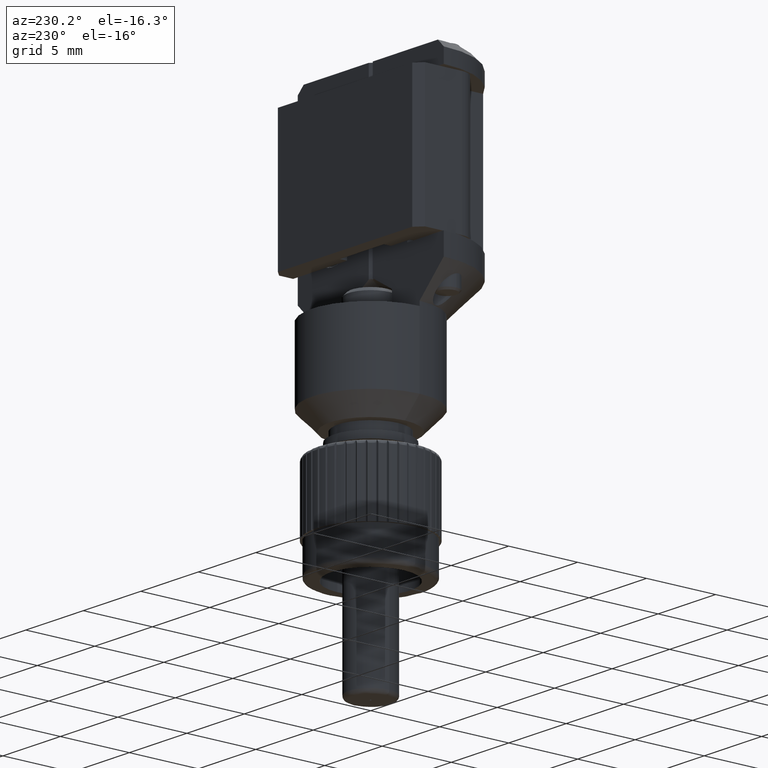
[diagram: clean part render]
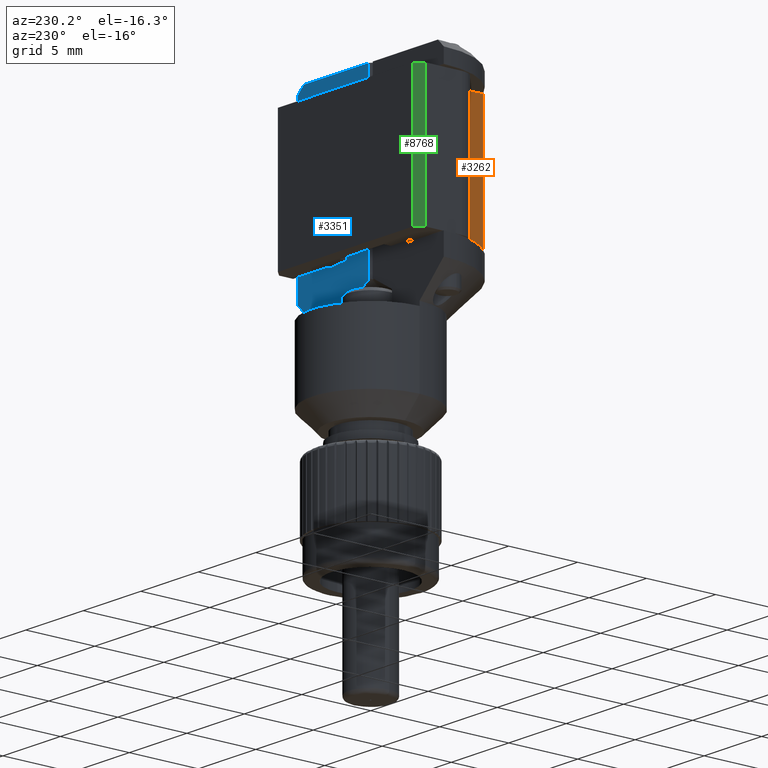
[diagram: same view with three faces highlighted in distinct colors, each labeled with its STEP entity id]
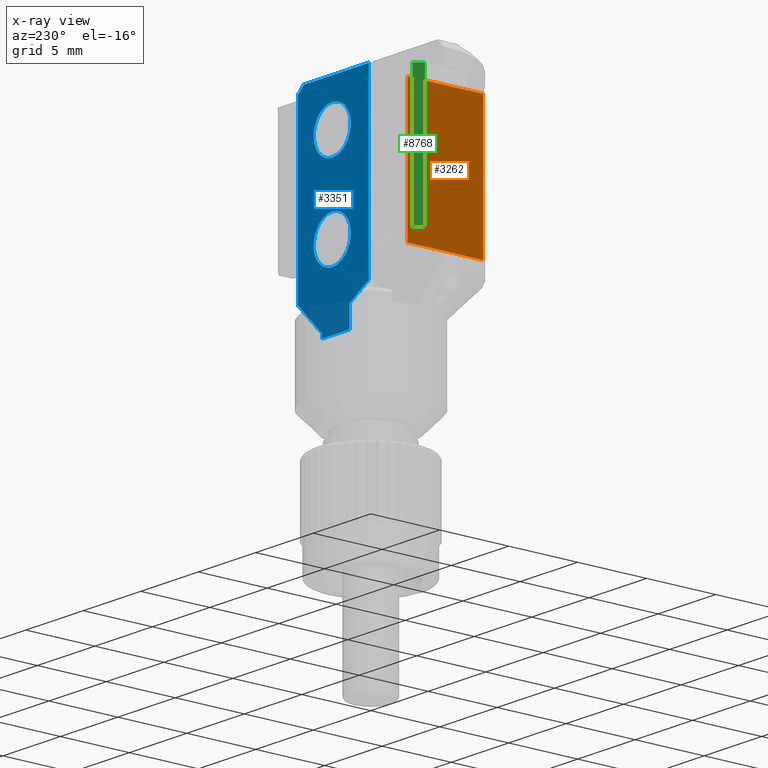
[diagram: x-ray of the same camera — body ghosted, the three highlighted faces saturated]
A machine part, auxiliary view with three faces highlighted in distinct colors.
The next image is the same camera in x-ray (body ghosted, the three faces saturated) — at least one of them is partly hidden behind the body in this view.
Their STEP definitions:

[orange] entity #3262 — the highlighted planar face has unit normal (1, 0, -0).
#190 = EDGE_CURVE ( 'NONE', #6319, #4273, #8465, .T. ) ;
#225 = CARTESIAN_POINT ( 'NONE',  ( -0.1250000000000000000, 0.0000000000000000000, 0.3118110236220471600 ) ) ;
#574 = CARTESIAN_POINT ( 'NONE',  ( -0.1250000000000000000, -0.2500000000000000000, 0.3118110236220471600 ) ) ;
#916 = CARTESIAN_POINT ( 'NONE',  ( -0.1250000000000000000, -0.2165063509461096200, 0.2518110236220472700 ) ) ;
#1170 = CARTESIAN_POINT ( 'NONE',  ( -0.1250000000000000000, 0.0000000000000000000, 0.3118110236220471600 ) ) ;
#1608 = DIRECTION ( 'NONE',  ( -0.0000000000000000000, 1.000000000000000000, -0.0000000000000000000 ) ) ;
#2085 = VECTOR ( 'NONE', #9358, 39.37007874015748100 ) ;
#2087 = DIRECTION ( 'NONE',  ( 1.000000000000000000, 0.0000000000000000000, -0.0000000000000000000 ) ) ;
#2529 = VERTEX_POINT ( 'NONE', #5698 ) ;
#2998 = ORIENTED_EDGE ( 'NONE', *, *, #3344, .T. ) ;
#3262 = ADVANCED_FACE ( 'NONE', ( #6282 ), #5098, .F. ) ;
#3344 = EDGE_CURVE ( 'NONE', #6319, #5973, #6272, .T. ) ;
#3501 = CARTESIAN_POINT ( 'NONE',  ( -0.1250000000000000000, -0.2500000000000000000, 0.3118110236220471600 ) ) ;
#3685 = CARTESIAN_POINT ( 'NONE',  ( -0.1250000000000000000, -0.2165063509461096200, 0.3118110236220471600 ) ) ;
#4062 = VECTOR ( 'NONE', #1608, 39.37007874015748100 ) ;
#4273 = VERTEX_POINT ( 'NONE', #1170 ) ;
#4391 = VECTOR ( 'NONE', #8237, 39.37007874015748100 ) ;
#4693 = VECTOR ( 'NONE', #8431, 39.37007874015748100 ) ;
#4822 = EDGE_CURVE ( 'NONE', #5973, #2529, #7527, .T. ) ;
#5098 = PLANE ( 'NONE',  #7409 ) ;
#5387 = CARTESIAN_POINT ( 'NONE',  ( -0.1250000000000000000, -0.2500000000000000000, 0.6918110236220471600 ) ) ;
#5552 = ORIENTED_EDGE ( 'NONE', *, *, #190, .F. ) ;
#5696 = ORIENTED_EDGE ( 'NONE', *, *, #6873, .T. ) ;
#5698 = CARTESIAN_POINT ( 'NONE',  ( -0.1250000000000000000, 0.0000000000000000000, 0.6918110236220471600 ) ) ;
#5973 = VERTEX_POINT ( 'NONE', #7158 ) ;
#6160 = EDGE_LOOP ( 'NONE', ( #2998, #6459, #5696, #5552 ) ) ;
#6272 = LINE ( 'NONE', #916, #4693 ) ;
#6282 = FACE_OUTER_BOUND ( 'NONE', #6160, .T. ) ;
#6319 = VERTEX_POINT ( 'NONE', #3685 ) ;
#6459 = ORIENTED_EDGE ( 'NONE', *, *, #4822, .T. ) ;
#6873 = EDGE_CURVE ( 'NONE', #2529, #4273, #8627, .T. ) ;
#7158 = CARTESIAN_POINT ( 'NONE',  ( -0.1250000000000000000, -0.2165063509461096500, 0.6918110236220471600 ) ) ;
#7409 = AXIS2_PLACEMENT_3D ( 'NONE', #3501, #2087, #9604 ) ;
#7527 = LINE ( 'NONE', #5387, #4062 ) ;
#8237 = DIRECTION ( 'NONE',  ( -0.0000000000000000000, 1.000000000000000000, -0.0000000000000000000 ) ) ;
#8431 = DIRECTION ( 'NONE',  ( 0.0000000000000000000, 0.0000000000000000000, 1.000000000000000000 ) ) ;
#8465 = LINE ( 'NONE', #574, #4391 ) ;
#8627 = LINE ( 'NONE', #225, #2085 ) ;
#9358 = DIRECTION ( 'NONE',  ( -0.0000000000000000000, -0.0000000000000000000, -1.000000000000000000 ) ) ;
#9604 = DIRECTION ( 'NONE',  ( -0.0000000000000000000, 0.0000000000000000000, -1.000000000000000000 ) ) ;

[blue] entity #3351 — the highlighted planar face has unit normal (0, -1, 0).
#28 = CARTESIAN_POINT ( 'NONE',  ( 0.07283464566929130600, 0.0000000000000000000, -0.09299999999999999900 ) ) ;
#537 = CIRCLE ( 'NONE', #9386, 0.06350000000000001500 ) ;
#605 = ORIENTED_EDGE ( 'NONE', *, *, #1284, .F. ) ;
#647 = VERTEX_POINT ( 'NONE', #5784 ) ;
#665 = AXIS2_PLACEMENT_3D ( 'NONE', #7495, #1401, #7537 ) ;
#674 = EDGE_CURVE ( 'NONE', #2747, #2046, #1428, .T. ) ;
#803 = VERTEX_POINT ( 'NONE', #2222 ) ;
#871 = LINE ( 'NONE', #1443, #3587 ) ;
#883 = DIRECTION ( 'NONE',  ( 0.0000000000000000000, -1.000000000000000000, 0.0000000000000000000 ) ) ;
#932 = CARTESIAN_POINT ( 'NONE',  ( 0.2498000000000004900, 4.390929674800009300E-022, 0.2518110236220472700 ) ) ;
#1042 = VERTEX_POINT ( 'NONE', #5085 ) ;
#1176 = DIRECTION ( 'NONE',  ( 0.0000000000000000000, 1.000000000000000000, 0.0000000000000000000 ) ) ;
#1284 = EDGE_CURVE ( 'NONE', #6491, #9762, #9288, .T. ) ;
#1308 = AXIS2_PLACEMENT_3D ( 'NONE', #3090, #883, #6936 ) ;
#1401 = DIRECTION ( 'NONE',  ( 0.0000000000000000000, 1.000000000000000000, 0.0000000000000000000 ) ) ;
#1428 = LINE ( 'NONE', #6472, #7132 ) ;
#1443 = CARTESIAN_POINT ( 'NONE',  ( 0.0000000000000000000, 0.0000000000000000000, 0.2607634702835035000 ) ) ;
#1701 = LINE ( 'NONE', #7350, #8362 ) ;
#1725 = CIRCLE ( 'NONE', #665, 0.06350000000000001500 ) ;
#2006 = CARTESIAN_POINT ( 'NONE',  ( 0.007006601717798212700, 5.334834616502831700E-019, 0.2518110236220472700 ) ) ;
#2016 = CARTESIAN_POINT ( 'NONE',  ( 0.2300000000000000100, 2.195464837405662100E-020, 0.7518110236220472100 ) ) ;
#2046 = VERTEX_POINT ( 'NONE', #9524 ) ;
#2222 = CARTESIAN_POINT ( 'NONE',  ( 0.07283464566929130600, 0.0000000000000000000, 0.1574803149606299200 ) ) ;
#2225 = LINE ( 'NONE', #5357, #3968 ) ;
#2301 = ORIENTED_EDGE ( 'NONE', *, *, #9521, .T. ) ;
#2514 = VECTOR ( 'NONE', #4904, 39.37007874015748100 ) ;
#2687 = ORIENTED_EDGE ( 'NONE', *, *, #7314, .F. ) ;
#2721 = ORIENTED_EDGE ( 'NONE', *, *, #4764, .F. ) ;
#2747 = VERTEX_POINT ( 'NONE', #4340 ) ;
#2756 = LINE ( 'NONE', #8280, #4890 ) ;
#3011 = EDGE_CURVE ( 'NONE', #1042, #4195, #537, .T. ) ;
#3030 = PLANE ( 'NONE',  #1308 ) ;
#3090 = CARTESIAN_POINT ( 'NONE',  ( -0.1673000000000000000, 0.0000000000000000000, 0.5118110236220472200 ) ) ;
#3351 = ADVANCED_FACE ( 'NONE', ( #9708, #4448, #8877 ), #3030, .F. ) ;
#3449 = CARTESIAN_POINT ( 'NONE',  ( -0.1673000000000000000, 0.0000000000000000000, 0.1574803149606299200 ) ) ;
#3533 = EDGE_CURVE ( 'NONE', #2046, #803, #7548, .T. ) ;
#3564 = LINE ( 'NONE', #8696, #2514 ) ;
#3587 = VECTOR ( 'NONE', #4412, 39.37007874015748900 ) ;
#3618 = EDGE_LOOP ( 'NONE', ( #5886, #7325, #7498, #4568, #9196, #4473, #4989, #7368, #2301, #5927 ) ) ;
#3894 = CARTESIAN_POINT ( 'NONE',  ( 0.1320066017177982100, 0.0000000000000000000, 0.4403110236220472700 ) ) ;
#3965 = CARTESIAN_POINT ( 'NONE',  ( 0.007006601717798212700, 5.334834616502831700E-019, 0.7518110236220472100 ) ) ;
#3968 = VECTOR ( 'NONE', #6949, 39.37007874015748100 ) ;
#4139 = DIRECTION ( 'NONE',  ( -1.000000000000000000, -0.0000000000000000000, -0.0000000000000000000 ) ) ;
#4195 = VERTEX_POINT ( 'NONE', #7078 ) ;
#4340 = CARTESIAN_POINT ( 'NONE',  ( 0.1673000000000000000, 0.0000000000000000000, 0.1693110236220476100 ) ) ;
#4412 = DIRECTION ( 'NONE',  ( -0.8571673007021114500, 0.0000000000000000000, 0.5150380749100553800 ) ) ;
#4448 = FACE_BOUND ( 'NONE', #5817, .T. ) ;
#4473 = ORIENTED_EDGE ( 'NONE', *, *, #6004, .T. ) ;
#4521 = VECTOR ( 'NONE', #4601, 39.37007874015748100 ) ;
#4555 = VERTEX_POINT ( 'NONE', #2016 ) ;
#4568 = ORIENTED_EDGE ( 'NONE', *, *, #8955, .T. ) ;
#4601 = DIRECTION ( 'NONE',  ( 0.0000000000000000000, 0.0000000000000000000, 1.000000000000000000 ) ) ;
#4764 = EDGE_CURVE ( 'NONE', #4195, #1042, #1725, .T. ) ;
#4841 = AXIS2_PLACEMENT_3D ( 'NONE', #7175, #1176, #7956 ) ;
#4890 = VECTOR ( 'NONE', #8917, 39.37007874015748100 ) ;
#4904 = DIRECTION ( 'NONE',  ( 0.7071067811865469100, 0.0000000000000000000, -0.7071067811865481300 ) ) ;
#4989 = ORIENTED_EDGE ( 'NONE', *, *, #6487, .F. ) ;
#5062 = EDGE_LOOP ( 'NONE', ( #7666, #2721 ) ) ;
#5085 = CARTESIAN_POINT ( 'NONE',  ( 0.1320066017177982100, 0.0000000000000000000, 0.6903110236220472200 ) ) ;
#5357 = CARTESIAN_POINT ( 'NONE',  ( 0.2500000000000000000, 0.0000000000000000000, 0.2518110236220472700 ) ) ;
#5452 = DIRECTION ( 'NONE',  ( 0.0000000000000000000, 0.0000000000000000000, 1.000000000000000000 ) ) ;
#5496 = CARTESIAN_POINT ( 'NONE',  ( 0.007006601717798212700, 5.334834616502831700E-019, 0.1418130772283663600 ) ) ;
#5512 = DIRECTION ( 'NONE',  ( 0.0000000000000000000, 1.000000000000000000, 0.0000000000000000000 ) ) ;
#5616 = EDGE_CURVE ( 'NONE', #4555, #6558, #1701, .T. ) ;
#5670 = VECTOR ( 'NONE', #4139, 39.37007874015748100 ) ;
#5679 = LINE ( 'NONE', #2006, #7941 ) ;
#5692 = DIRECTION ( 'NONE',  ( 0.0000000000000000000, 0.0000000000000000000, 1.000000000000000000 ) ) ;
#5760 = CARTESIAN_POINT ( 'NONE',  ( 0.1320066017177982100, 0.0000000000000000000, 0.3768110236220472100 ) ) ;
#5784 = CARTESIAN_POINT ( 'NONE',  ( 0.07283464566929130600, 0.0000000000000000000, 0.2169999999999999700 ) ) ;
#5817 = EDGE_LOOP ( 'NONE', ( #2687, #605 ) ) ;
#5886 = ORIENTED_EDGE ( 'NONE', *, *, #3533, .T. ) ;
#5895 = DIRECTION ( 'NONE',  ( -1.000000000000000000, 2.195464837405661100E-018, -0.0000000000000000000 ) ) ;
#5927 = ORIENTED_EDGE ( 'NONE', *, *, #674, .T. ) ;
#6001 = CARTESIAN_POINT ( 'NONE',  ( 0.2500000000000000000, 0.0000000000000000000, 0.7318110236220472000 ) ) ;
#6004 = EDGE_CURVE ( 'NONE', #4555, #9241, #3564, .T. ) ;
#6045 = CARTESIAN_POINT ( 'NONE',  ( 0.1320066017177982100, 0.0000000000000000000, 0.3133110236220472100 ) ) ;
#6187 = EDGE_CURVE ( 'NONE', #6659, #7438, #5679, .T. ) ;
#6472 = CARTESIAN_POINT ( 'NONE',  ( 0.1673000000000000000, 0.0000000000000000000, 0.5118110236220472200 ) ) ;
#6487 = EDGE_CURVE ( 'NONE', #6659, #9241, #2225, .T. ) ;
#6491 = VERTEX_POINT ( 'NONE', #6045 ) ;
#6558 = VERTEX_POINT ( 'NONE', #3965 ) ;
#6659 = VERTEX_POINT ( 'NONE', #8194 ) ;
#6740 = DIRECTION ( 'NONE',  ( -0.0000000000000000000, -0.0000000000000000000, -1.000000000000000000 ) ) ;
#6936 = DIRECTION ( 'NONE',  ( 0.0000000000000000000, -0.0000000000000000000, -1.000000000000000000 ) ) ;
#6949 = DIRECTION ( 'NONE',  ( 0.0000000000000000000, 0.0000000000000000000, 1.000000000000000000 ) ) ;
#7078 = CARTESIAN_POINT ( 'NONE',  ( 0.1320066017177982100, 0.0000000000000000000, 0.5633110236220471000 ) ) ;
#7132 = VECTOR ( 'NONE', #6740, 39.37007874015748100 ) ;
#7175 = CARTESIAN_POINT ( 'NONE',  ( 0.1320066017177982100, 0.0000000000000000000, 0.3768110236220472100 ) ) ;
#7314 = EDGE_CURVE ( 'NONE', #9762, #6491, #7417, .T. ) ;
#7325 = ORIENTED_EDGE ( 'NONE', *, *, #9364, .T. ) ;
#7350 = CARTESIAN_POINT ( 'NONE',  ( 0.007006601717798212700, 5.334834616502831700E-019, 0.7518110236220472100 ) ) ;
#7368 = ORIENTED_EDGE ( 'NONE', *, *, #6187, .T. ) ;
#7413 = DIRECTION ( 'NONE',  ( -1.000000000000000000, 2.195464837405661100E-018, -0.0000000000000000000 ) ) ;
#7417 = CIRCLE ( 'NONE', #4841, 0.06350000000000001500 ) ;
#7438 = VERTEX_POINT ( 'NONE', #932 ) ;
#7495 = CARTESIAN_POINT ( 'NONE',  ( 0.1320066017177982100, 0.0000000000000000000, 0.6268110236220472100 ) ) ;
#7498 = ORIENTED_EDGE ( 'NONE', *, *, #8654, .T. ) ;
#7521 = VECTOR ( 'NONE', #9361, 39.37007874015748100 ) ;
#7537 = DIRECTION ( 'NONE',  ( 0.0000000000000000000, 0.0000000000000000000, 1.000000000000000000 ) ) ;
#7548 = LINE ( 'NONE', #3449, #5670 ) ;
#7666 = ORIENTED_EDGE ( 'NONE', *, *, #3011, .F. ) ;
#7770 = LINE ( 'NONE', #5496, #7521 ) ;
#7812 = CARTESIAN_POINT ( 'NONE',  ( 0.1320066017177982100, 0.0000000000000000000, 0.6268110236220472100 ) ) ;
#7941 = VECTOR ( 'NONE', #5895, 39.37007874015748100 ) ;
#7956 = DIRECTION ( 'NONE',  ( 0.0000000000000000000, 0.0000000000000000000, 1.000000000000000000 ) ) ;
#8042 = VERTEX_POINT ( 'NONE', #9541 ) ;
#8194 = CARTESIAN_POINT ( 'NONE',  ( 0.2500000000000000000, 0.0000000000000000000, 0.2518110236220472700 ) ) ;
#8280 = CARTESIAN_POINT ( 'NONE',  ( 0.0000000000000000000, 0.0000000000000000000, 0.002011023622049301600 ) ) ;
#8362 = VECTOR ( 'NONE', #7413, 39.37007874015748100 ) ;
#8654 = EDGE_CURVE ( 'NONE', #647, #8042, #871, .T. ) ;
#8696 = CARTESIAN_POINT ( 'NONE',  ( 0.0000000000000000000, 0.0000000000000000000, 0.9818110236220476400 ) ) ;
#8783 = DIRECTION ( 'NONE',  ( 0.0000000000000000000, 1.000000000000000000, 0.0000000000000000000 ) ) ;
#8877 = FACE_OUTER_BOUND ( 'NONE', #3618, .T. ) ;
#8917 = DIRECTION ( 'NONE',  ( -0.7071067811865511300, -0.0000000000000000000, -0.7071067811865439100 ) ) ;
#8955 = EDGE_CURVE ( 'NONE', #8042, #6558, #7770, .T. ) ;
#9134 = AXIS2_PLACEMENT_3D ( 'NONE', #5760, #8783, #5692 ) ;
#9196 = ORIENTED_EDGE ( 'NONE', *, *, #5616, .F. ) ;
#9203 = LINE ( 'NONE', #28, #4521 ) ;
#9241 = VERTEX_POINT ( 'NONE', #6001 ) ;
#9288 = CIRCLE ( 'NONE', #9134, 0.06350000000000001500 ) ;
#9361 = DIRECTION ( 'NONE',  ( -0.0000000000000000000, -0.0000000000000000000, 1.000000000000000000 ) ) ;
#9364 = EDGE_CURVE ( 'NONE', #803, #647, #9203, .T. ) ;
#9386 = AXIS2_PLACEMENT_3D ( 'NONE', #7812, #5512, #5452 ) ;
#9521 = EDGE_CURVE ( 'NONE', #7438, #2747, #2756, .T. ) ;
#9524 = CARTESIAN_POINT ( 'NONE',  ( 0.1673000000000000000, 0.0000000000000000000, 0.1574803149606299200 ) ) ;
#9541 = CARTESIAN_POINT ( 'NONE',  ( 0.007006601717798155400, -5.662880254500222300E-017, 0.2565534792380677600 ) ) ;
#9708 = FACE_BOUND ( 'NONE', #5062, .T. ) ;
#9762 = VERTEX_POINT ( 'NONE', #3894 ) ;

[green] entity #8768 — the highlighted planar face has unit normal (0.7071, -0.7071, 0).
#595 = EDGE_CURVE ( 'NONE', #3493, #6983, #7253, .T. ) ;
#875 = DIRECTION ( 'NONE',  ( 0.7071067811865486800, 0.7071067811865462400, -0.0000000000000000000 ) ) ;
#980 = VERTEX_POINT ( 'NONE', #3573 ) ;
#1200 = VECTOR ( 'NONE', #3454, 39.37007874015748900 ) ;
#1437 = DIRECTION ( 'NONE',  ( 0.0000000000000000000, 0.0000000000000000000, 1.000000000000000000 ) ) ;
#2132 = VECTOR ( 'NONE', #1437, 39.37007874015748100 ) ;
#2303 = LINE ( 'NONE', #2358, #2418 ) ;
#2358 = CARTESIAN_POINT ( 'NONE',  ( -0.2400000000000000700, 0.04499999999999996400, 0.6893110236220474400 ) ) ;
#2393 = EDGE_CURVE ( 'NONE', #980, #3493, #8557, .T. ) ;
#2418 = VECTOR ( 'NONE', #6176, 39.37007874015748100 ) ;
#2891 = ORIENTED_EDGE ( 'NONE', *, *, #8792, .F. ) ;
#3198 = CARTESIAN_POINT ( 'NONE',  ( -0.2400000000000000700, 0.04499999999999996400, 0.6893110236220474400 ) ) ;
#3349 = LINE ( 'NONE', #5439, #6468 ) ;
#3454 = DIRECTION ( 'NONE',  ( -0.7071067811865486800, -0.7071067811865462400, -0.0000000000000000000 ) ) ;
#3493 = VERTEX_POINT ( 'NONE', #9596 ) ;
#3573 = CARTESIAN_POINT ( 'NONE',  ( -0.2199999999999999500, 0.06500000000000003000, 0.3143110236220473800 ) ) ;
#3581 = ORIENTED_EDGE ( 'NONE', *, *, #2393, .F. ) ;
#3910 = EDGE_LOOP ( 'NONE', ( #8078, #3581, #2891, #4293 ) ) ;
#4256 = AXIS2_PLACEMENT_3D ( 'NONE', #9101, #4511, #9843 ) ;
#4293 = ORIENTED_EDGE ( 'NONE', *, *, #4799, .F. ) ;
#4511 = DIRECTION ( 'NONE',  ( 0.7071067811865463500, -0.7071067811865487900, 0.0000000000000000000 ) ) ;
#4550 = PLANE ( 'NONE',  #4256 ) ;
#4551 = CARTESIAN_POINT ( 'NONE',  ( -0.2400000000000001000, 0.04499999999999989400, 0.3143110236220473800 ) ) ;
#4799 = EDGE_CURVE ( 'NONE', #6983, #7202, #2303, .T. ) ;
#5439 = CARTESIAN_POINT ( 'NONE',  ( 0.02000000000000081200, 0.3049999999999999900, 0.3143110236220473800 ) ) ;
#6176 = DIRECTION ( 'NONE',  ( 0.0000000000000000000, 0.0000000000000000000, -1.000000000000000000 ) ) ;
#6468 = VECTOR ( 'NONE', #875, 39.37007874015748900 ) ;
#6983 = VERTEX_POINT ( 'NONE', #3198 ) ;
#7202 = VERTEX_POINT ( 'NONE', #4551 ) ;
#7253 = LINE ( 'NONE', #8002, #1200 ) ;
#7292 = FACE_OUTER_BOUND ( 'NONE', #3910, .T. ) ;
#8002 = CARTESIAN_POINT ( 'NONE',  ( -0.2400000000000000700, 0.04499999999999996400, 0.6893110236220474400 ) ) ;
#8078 = ORIENTED_EDGE ( 'NONE', *, *, #595, .F. ) ;
#8424 = CARTESIAN_POINT ( 'NONE',  ( -0.2199999999999999500, 0.06500000000000003000, 0.6893110236220474400 ) ) ;
#8557 = LINE ( 'NONE', #8424, #2132 ) ;
#8768 = ADVANCED_FACE ( 'NONE', ( #7292 ), #4550, .F. ) ;
#8792 = EDGE_CURVE ( 'NONE', #7202, #980, #3349, .T. ) ;
#9101 = CARTESIAN_POINT ( 'NONE',  ( -0.2400000000000000700, 0.04499999999999996400, 0.6893110236220474400 ) ) ;
#9596 = CARTESIAN_POINT ( 'NONE',  ( -0.2199999999999999200, 0.06500000000000003000, 0.6893110236220474400 ) ) ;
#9843 = DIRECTION ( 'NONE',  ( 0.7071067811865486800, 0.7071067811865462400, 0.0000000000000000000 ) ) ;